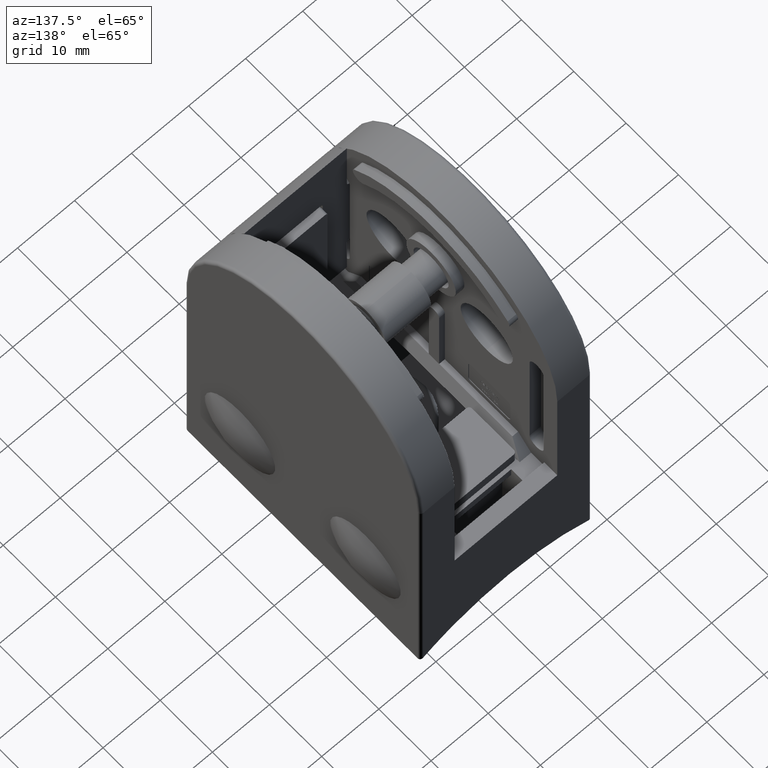
[diagram: clean part render]
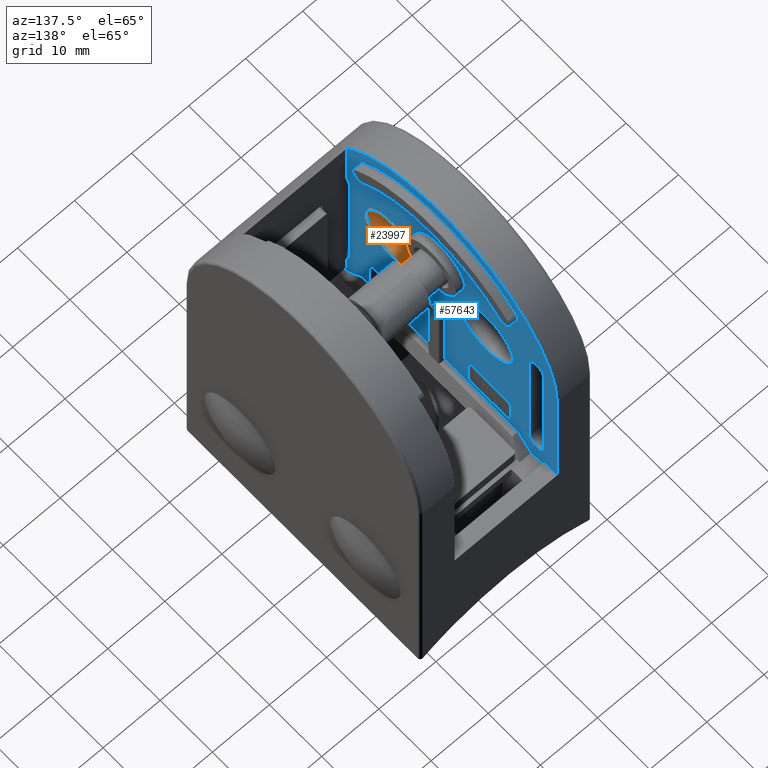
[diagram: same view with the hole feature highlighted: cylindrical wall and planar end face, labeled with their STEP entity ids]
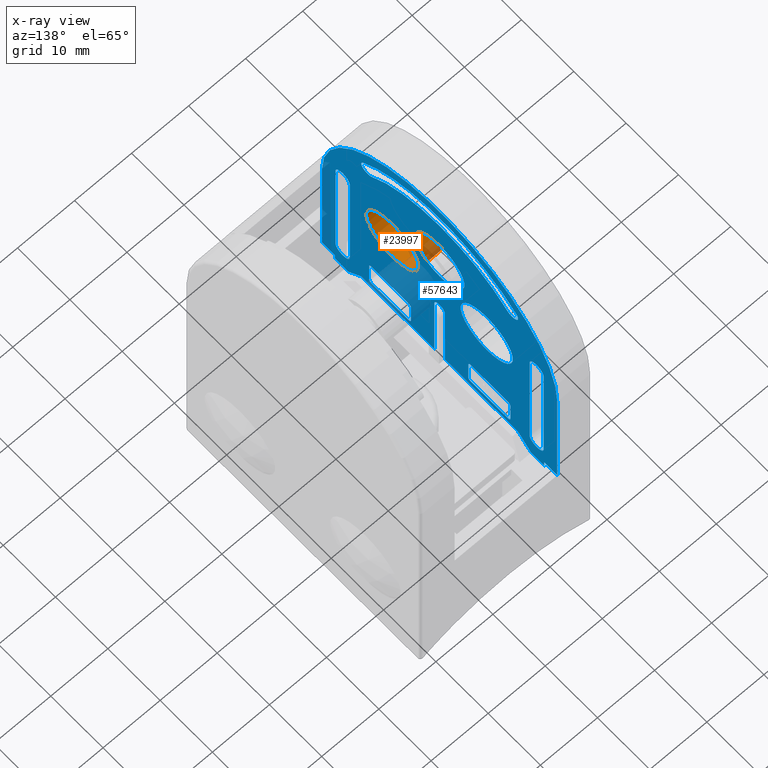
[diagram: x-ray of the same camera — body ghosted, the hole faces saturated]
A machine part, auxiliary view. The highlighted faces form one hole feature of diameter 10 mm: the cylindrical wall (entity #23997, orange) and its adjacent planar end face (entity #57643, blue) — they share a circular edge in the B-rep.
The next image is the same camera in x-ray (body ghosted, the hole faces saturated) — the bore reads through the body.
Wall:
#4879 = DIRECTION ( 'NONE',  ( 1.000000000000000000, 0.000000000000000000, -0.000000000000000000 ) ) ;
#7013 = EDGE_CURVE ( 'NONE', #81976, #81976, #54401, .T. ) ;
#15289 = CARTESIAN_POINT ( 'NONE',  ( 6.000000000000000000, -9.000000000000000000, 45.00000000000000000 ) ) ;
#15502 = FACE_OUTER_BOUND ( 'NONE', #75129, .T. ) ;
#17631 = AXIS2_PLACEMENT_3D ( 'NONE', #22252, #66174, #41173 ) ;
#19157 = DIRECTION ( 'NONE',  ( 1.000000000000000000, 0.000000000000000000, -0.000000000000000000 ) ) ;
#22186 = CARTESIAN_POINT ( 'NONE',  ( 2.000000000000000000, -9.000000000000000000, 45.00000000000000000 ) ) ;
#22252 = CARTESIAN_POINT ( 'NONE',  ( 2.000000000000000000, -9.000000000000000000, 40.00000000000000000 ) ) ;
#23997 = ADVANCED_FACE ( 'NONE', ( #49324, #15502 ), #70157, .F. ) ;
#26104 = CIRCLE ( 'NONE', #62487, 4.999999999999997335 ) ;
#26371 = VERTEX_POINT ( 'NONE', #22186 ) ;
#26609 = AXIS2_PLACEMENT_3D ( 'NONE', #68189, #4879, #74511 ) ;
#27941 = ORIENTED_EDGE ( 'NONE', *, *, #29039, .F. ) ;
#29039 = EDGE_CURVE ( 'NONE', #26371, #26371, #26104, .T. ) ;
#41173 = DIRECTION ( 'NONE',  ( 0.000000000000000000, 0.000000000000000000, -1.000000000000000000 ) ) ;
#42403 = EDGE_LOOP ( 'NONE', ( #27941 ) ) ;
#45322 = CARTESIAN_POINT ( 'NONE',  ( 2.000000000000000000, -9.000000000000000000, 40.00000000000000000 ) ) ;
#49324 = FACE_OUTER_BOUND ( 'NONE', #42403, .T. ) ;
#54401 = CIRCLE ( 'NONE', #26609, 4.999999999999997335 ) ;
#56687 = ORIENTED_EDGE ( 'NONE', *, *, #7013, .T. ) ;
#62487 = AXIS2_PLACEMENT_3D ( 'NONE', #45322, #19157, #69964 ) ;
#66174 = DIRECTION ( 'NONE',  ( 1.000000000000000000, -0.000000000000000000, -0.000000000000000000 ) ) ;
#68189 = CARTESIAN_POINT ( 'NONE',  ( 6.000000000000000000, -9.000000000000000000, 40.00000000000000000 ) ) ;
#69964 = DIRECTION ( 'NONE',  ( 0.000000000000000000, 0.000000000000000000, 1.000000000000000000 ) ) ;
#70157 = CYLINDRICAL_SURFACE ( 'NONE', #17631, 4.999999999999997335 ) ;
#74511 = DIRECTION ( 'NONE',  ( 0.000000000000000000, 0.000000000000000000, 1.000000000000000000 ) ) ;
#75129 = EDGE_LOOP ( 'NONE', ( #56687 ) ) ;
#81976 = VERTEX_POINT ( 'NONE', #15289 ) ;
End face:
#173 = CARTESIAN_POINT ( 'NONE',  ( 6.000000000000000000, -12.94196891191710108, 53.15367301153983703 ) ) ;
#361 = EDGE_CURVE ( 'NONE', #18874, #50488, #15577, .T. ) ;
#816 = ORIENTED_EDGE ( 'NONE', *, *, #51724, .F. ) ;
#861 = AXIS2_PLACEMENT_3D ( 'NONE', #82018, #76202, #7051 ) ;
#928 = CARTESIAN_POINT ( 'NONE',  ( 6.000000000000000000, -17.50000000000002132, 17.00000000000000711 ) ) ;
#1001 = CARTESIAN_POINT ( 'NONE',  ( 6.000000000000000000, 14.65803108808290034, 54.83150810699262934 ) ) ;
#1279 = VECTOR ( 'NONE', #3172, 1000.000000000000000 ) ;
#1334 = CARTESIAN_POINT ( 'NONE',  ( 6.000000000000000000, -22.50000000000001776, 17.99999999999998934 ) ) ;
#1393 = EDGE_LOOP ( 'NONE', ( #61485, #41975, #26505, #57368, #76343, #21941, #74850, #26824 ) ) ;
#1530 = VECTOR ( 'NONE', #24555, 1000.000000000000000 ) ;
#2069 = VERTEX_POINT ( 'NONE', #1001 ) ;
#2100 = FACE_BOUND ( 'NONE', #1393, .T. ) ;
#2169 = CARTESIAN_POINT ( 'NONE',  ( 5.999999999999999112, 20.70156211871645269, 19.50000000000000355 ) ) ;
#2194 = VERTEX_POINT ( 'NONE', #48165 ) ;
#2509 = VERTEX_POINT ( 'NONE', #173 ) ;
#2818 = VERTEX_POINT ( 'NONE', #29339 ) ;
#3021 = CARTESIAN_POINT ( 'NONE',  ( 6.000000000000000000, -17.20000000000001350, 44.04999999999999005 ) ) ;
#3172 = DIRECTION ( 'NONE',  ( -0.000000000000000000, -0.000000000000000000, 1.000000000000000000 ) ) ;
#3480 = EDGE_CURVE ( 'NONE', #2069, #4371, #20220, .T. ) ;
#3550 = DIRECTION ( 'NONE',  ( 1.000000000000000000, 0.000000000000000000, 0.000000000000000000 ) ) ;
#3787 = EDGE_LOOP ( 'NONE', ( #79572, #7014, #10393, #71528, #49148, #58122, #816, #34445, #29416, #10460, #16674, #47319, #47744, #4887, #7766, #5721 ) ) ;
#3964 = CARTESIAN_POINT ( 'NONE',  ( 6.000000000000000000, -17.50000000000002132, 17.00000000000000711 ) ) ;
#4017 = EDGE_CURVE ( 'NONE', #2509, #79982, #15189, .T. ) ;
#4371 = VERTEX_POINT ( 'NONE', #26617 ) ;
#4879 = DIRECTION ( 'NONE',  ( 1.000000000000000000, 0.000000000000000000, -0.000000000000000000 ) ) ;
#4887 = ORIENTED_EDGE ( 'NONE', *, *, #20432, .T. ) ;
#5148 = DIRECTION ( 'NONE',  ( 0.000000000000000000, 0.000000000000000000, -1.000000000000000000 ) ) ;
#5566 = EDGE_CURVE ( 'NONE', #2194, #58771, #46345, .T. ) ;
#5721 = ORIENTED_EDGE ( 'NONE', *, *, #6878, .F. ) ;
#5857 = VERTEX_POINT ( 'NONE', #71597 ) ;
#6282 = CIRCLE ( 'NONE', #71033, 0.5000000000000004441 ) ;
#6352 = ORIENTED_EDGE ( 'NONE', *, *, #50989, .F. ) ;
#6656 = CARTESIAN_POINT ( 'NONE',  ( 6.000000000000000000, -6.000000000000000000, 20.49999999999999645 ) ) ;
#6738 = CARTESIAN_POINT ( 'NONE',  ( 6.000000000000000000, -13.50000000000000000, 24.99999999999999645 ) ) ;
#6760 = DIRECTION ( 'NONE',  ( 1.000000000000000000, 0.000000000000000000, 0.000000000000000000 ) ) ;
#6828 = CARTESIAN_POINT ( 'NONE',  ( 6.000000000000000000, 0.000000000000000000, 48.00000000000000000 ) ) ;
#6878 = EDGE_CURVE ( 'NONE', #66509, #8408, #37447, .T. ) ;
#7013 = EDGE_CURVE ( 'NONE', #81976, #81976, #54401, .T. ) ;
#7014 = ORIENTED_EDGE ( 'NONE', *, *, #60318, .F. ) ;
#7051 = DIRECTION ( 'NONE',  ( 0.000000000000000000, 0.000000000000000000, -1.000000000000000000 ) ) ;
#7349 = VECTOR ( 'NONE', #5148, 1000.000000000000000 ) ;
#7766 = ORIENTED_EDGE ( 'NONE', *, *, #24668, .T. ) ;
#8408 = VERTEX_POINT ( 'NONE', #1334 ) ;
#8845 = CARTESIAN_POINT ( 'NONE',  ( 6.000000000000000000, 6.000000000000001776, 20.99999999999999645 ) ) ;
#9095 = CARTESIAN_POINT ( 'NONE',  ( 6.000000000000000000, -6.000000000000000000, 24.99999999999999645 ) ) ;
#9288 = DIRECTION ( 'NONE',  ( 0.000000000000000000, 0.000000000000000000, -1.000000000000000000 ) ) ;
#9456 = VECTOR ( 'NONE', #14408, 1000.000000000000000 ) ;
#9615 = CIRCLE ( 'NONE', #861, 1.199999999999999734 ) ;
#9678 = EDGE_CURVE ( 'NONE', #5857, #52253, #42031, .T. ) ;
#10072 = CARTESIAN_POINT ( 'NONE',  ( 6.000000000000000000, -5.500000000000000000, 24.99999999999999645 ) ) ;
#10321 = CARTESIAN_POINT ( 'NONE',  ( 6.000000000000000000, -13.50000000000000000, 20.99999999999999645 ) ) ;
#10393 = ORIENTED_EDGE ( 'NONE', *, *, #72412, .T. ) ;
#10460 = ORIENTED_EDGE ( 'NONE', *, *, #18483, .F. ) ;
#10950 = FACE_BOUND ( 'NONE', #14848, .T. ) ;
#11635 = CARTESIAN_POINT ( 'NONE',  ( 6.000000000000000000, 17.50000000000002132, 17.00000000000000711 ) ) ;
#11714 = VERTEX_POINT ( 'NONE', #61515 ) ;
#12028 = VERTEX_POINT ( 'NONE', #40619 ) ;
#12170 = LINE ( 'NONE', #53679, #14169 ) ;
#12315 = DIRECTION ( 'NONE',  ( -1.000000000000000000, -0.000000000000000000, -0.000000000000000000 ) ) ;
#12411 = AXIS2_PLACEMENT_3D ( 'NONE', #37440, #57220, #38533 ) ;
#12626 = DIRECTION ( 'NONE',  ( 0.000000000000000000, 0.000000000000000000, -1.000000000000000000 ) ) ;
#13304 = VERTEX_POINT ( 'NONE', #22345 ) ;
#13350 = ORIENTED_EDGE ( 'NONE', *, *, #361, .T. ) ;
#13436 = ORIENTED_EDGE ( 'NONE', *, *, #46357, .F. ) ;
#14046 = CARTESIAN_POINT ( 'NONE',  ( 6.000000000000000000, 6.000000000000001776, 24.99999999999999645 ) ) ;
#14169 = VECTOR ( 'NONE', #60042, 1000.000000000000000 ) ;
#14408 = DIRECTION ( 'NONE',  ( 0.000000000000000000, 0.000000000000000000, -1.000000000000000000 ) ) ;
#14848 = EDGE_LOOP ( 'NONE', ( #62722, #19204, #49318, #13436 ) ) ;
#15168 = DIRECTION ( 'NONE',  ( 0.000000000000000000, 0.000000000000000000, -1.000000000000000000 ) ) ;
#15189 = CIRCLE ( 'NONE', #51089, 18.10000000000001918 ) ;
#15267 = EDGE_CURVE ( 'NONE', #53154, #40307, #19453, .T. ) ;
#15289 = CARTESIAN_POINT ( 'NONE',  ( 6.000000000000000000, -9.000000000000000000, 45.00000000000000000 ) ) ;
#15423 = EDGE_CURVE ( 'NONE', #29568, #34145, #39284, .T. ) ;
#15550 = DIRECTION ( 'NONE',  ( 0.000000000000000000, 0.000000000000000000, -1.000000000000000000 ) ) ;
#15577 = CIRCLE ( 'NONE', #48299, 0.5000000000000004441 ) ;
#15655 = CARTESIAN_POINT ( 'NONE',  ( 6.000000000000000000, 5.500000000000001776, 20.49999999999999645 ) ) ;
#15742 = CARTESIAN_POINT ( 'NONE',  ( 5.999999999999999112, 15.00000000000001954, 19.50000000000000355 ) ) ;
#16061 = CARTESIAN_POINT ( 'NONE',  ( 6.000000000000000000, -5.500000000000000000, 25.50000000000000000 ) ) ;
#16385 = DIRECTION ( 'NONE',  ( -1.000000000000000000, -0.000000000000000000, -0.000000000000000000 ) ) ;
#16493 = CARTESIAN_POINT ( 'NONE',  ( 6.000000000000000000, -20.00000000000002132, 17.99999999999999289 ) ) ;
#16674 = ORIENTED_EDGE ( 'NONE', *, *, #68521, .F. ) ;
#16686 = CARTESIAN_POINT ( 'NONE',  ( 6.000000000000000000, 17.20000000000001350, 44.04999999999999005 ) ) ;
#17409 = CARTESIAN_POINT ( 'NONE',  ( 6.000000000000000000, -19.90000000000001634, 44.04999999999999005 ) ) ;
#17839 = CARTESIAN_POINT ( 'NONE',  ( 6.000000000000000000, -6.722053469410127491E-15, 40.49999999999997868 ) ) ;
#17864 = EDGE_CURVE ( 'NONE', #2818, #42221, #12170, .T. ) ;
#17886 = DIRECTION ( 'NONE',  ( 0.000000000000000000, 0.000000000000000000, -1.000000000000000000 ) ) ;
#18030 = FACE_OUTER_BOUND ( 'NONE', #3787, .T. ) ;
#18483 = EDGE_CURVE ( 'NONE', #37701, #39384, #19113, .T. ) ;
#18505 = EDGE_CURVE ( 'NONE', #55840, #62353, #78613, .T. ) ;
#18639 = ORIENTED_EDGE ( 'NONE', *, *, #38301, .F. ) ;
#18783 = DIRECTION ( 'NONE',  ( -0.000000000000000000, -1.000000000000000000, -0.000000000000000000 ) ) ;
#18874 = VERTEX_POINT ( 'NONE', #22287 ) ;
#18980 = AXIS2_PLACEMENT_3D ( 'NONE', #22978, #80424, #41884 ) ;
#19033 = CARTESIAN_POINT ( 'NONE',  ( 5.999999999999998224, -17.50000000000008171, 16.99999999999995381 ) ) ;
#19113 = LINE ( 'NONE', #56640, #31015 ) ;
#19199 = DIRECTION ( 'NONE',  ( -0.000000000000000000, -1.000000000000000000, 0.000000000000000000 ) ) ;
#19204 = ORIENTED_EDGE ( 'NONE', *, *, #26834, .T. ) ;
#19453 = LINE ( 'NONE', #24665, #65195 ) ;
#19597 = DIRECTION ( 'NONE',  ( 0.000000000000000000, 0.000000000000000000, -1.000000000000000000 ) ) ;
#19702 = VERTEX_POINT ( 'NONE', #59156 ) ;
#19816 = CARTESIAN_POINT ( 'NONE',  ( 6.000000000000000000, 0.9999999999999890088, 33.50000000000000711 ) ) ;
#19876 = CARTESIAN_POINT ( 'NONE',  ( 6.000000000000000000, 13.50000000000000178, 25.50000000000000355 ) ) ;
#19972 = CARTESIAN_POINT ( 'NONE',  ( 6.000000000000000000, -17.20000000000001350, 44.04999999999999005 ) ) ;
#20071 = CARTESIAN_POINT ( 'NONE',  ( 6.000000000000000000, -6.654304323386755867E-15, 40.49999999999997868 ) ) ;
#20123 = CARTESIAN_POINT ( 'NONE',  ( 6.000000000000000000, 20.00000000000002132, 17.99999999999999645 ) ) ;
#20214 = VECTOR ( 'NONE', #41344, 1000.000000000000000 ) ;
#20220 = CIRCLE ( 'NONE', #78526, 20.50000000000002487 ) ;
#20403 = ORIENTED_EDGE ( 'NONE', *, *, #28219, .T. ) ;
#20427 = CARTESIAN_POINT ( 'NONE',  ( 6.000000000000000000, 5.500000000000001776, 25.50000000000000000 ) ) ;
#20432 = EDGE_CURVE ( 'NONE', #51414, #36836, #60172, .T. ) ;
#20938 = DIRECTION ( 'NONE',  ( -0.000000000000000000, 0.7071067811865485719, 0.7071067811865465735 ) ) ;
#21548 = VECTOR ( 'NONE', #24366, 1000.000000000000000 ) ;
#21556 = DIRECTION ( 'NONE',  ( -1.000000000000000000, -0.000000000000000000, -0.000000000000000000 ) ) ;
#21709 = EDGE_CURVE ( 'NONE', #59936, #39384, #27216, .T. ) ;
#21941 = ORIENTED_EDGE ( 'NONE', *, *, #28038, .T. ) ;
#22287 = CARTESIAN_POINT ( 'NONE',  ( 6.000000000000000000, 5.500000000000001776, 24.99999999999999645 ) ) ;
#22345 = CARTESIAN_POINT ( 'NONE',  ( 6.000000000000000000, 13.00000000000000178, 20.49999999999999645 ) ) ;
#22786 = DIRECTION ( 'NONE',  ( 0.000000000000000000, 1.000000000000000000, 0.000000000000000000 ) ) ;
#22978 = CARTESIAN_POINT ( 'NONE',  ( 6.000000000000000000, -18.55000000000001847, 44.04999999999999005 ) ) ;
#23554 = LINE ( 'NONE', #38930, #64323 ) ;
#23801 = EDGE_LOOP ( 'NONE', ( #18639, #61464, #29559, #32614 ) ) ;
#24004 = EDGE_CURVE ( 'NONE', #2194, #13304, #59397, .T. ) ;
#24366 = DIRECTION ( 'NONE',  ( -0.000000000000000000, 8.566535683836090412E-17, -1.000000000000000000 ) ) ;
#24379 = CIRCLE ( 'NONE', #46940, 4.749999999999997335 ) ;
#24555 = DIRECTION ( 'NONE',  ( 0.000000000000000000, 0.000000000000000000, -1.000000000000000000 ) ) ;
#24621 = CARTESIAN_POINT ( 'NONE',  ( 6.000000000000000000, 13.00000000000000178, 25.50000000000000355 ) ) ;
#24665 = CARTESIAN_POINT ( 'NONE',  ( 6.000000000000000000, -13.50000000000000000, 25.50000000000000000 ) ) ;
#24668 = EDGE_CURVE ( 'NONE', #36836, #8408, #56429, .T. ) ;
#25487 = LINE ( 'NONE', #16686, #74108 ) ;
#25509 = AXIS2_PLACEMENT_3D ( 'NONE', #20071, #6760, #25920 ) ;
#25687 = CARTESIAN_POINT ( 'NONE',  ( 6.000000000000000000, 9.000000000000000000, 40.00000000000000000 ) ) ;
#25742 = EDGE_CURVE ( 'NONE', #34145, #19702, #35394, .T. ) ;
#25920 = DIRECTION ( 'NONE',  ( 0.000000000000000000, 0.000000000000000000, -1.000000000000000000 ) ) ;
#25972 = VERTEX_POINT ( 'NONE', #34517 ) ;
#25978 = CIRCLE ( 'NONE', #56671, 1.350000000000000533 ) ;
#26063 = LINE ( 'NONE', #19876, #49940 ) ;
#26183 = VECTOR ( 'NONE', #19199, 1000.000000000000000 ) ;
#26505 = ORIENTED_EDGE ( 'NONE', *, *, #15267, .F. ) ;
#26606 = EDGE_CURVE ( 'NONE', #79876, #79876, #24379, .T. ) ;
#26609 = AXIS2_PLACEMENT_3D ( 'NONE', #68189, #4879, #74511 ) ;
#26617 = CARTESIAN_POINT ( 'NONE',  ( 6.000000000000000000, -14.65803108808290389, 54.83150810699263644 ) ) ;
#26663 = CARTESIAN_POINT ( 'NONE',  ( 6.000000000000000000, 18.55000000000001492, 21.75000000000000355 ) ) ;
#26801 = VERTEX_POINT ( 'NONE', #28736 ) ;
#26824 = ORIENTED_EDGE ( 'NONE', *, *, #45833, .T. ) ;
#26834 = EDGE_CURVE ( 'NONE', #47243, #60747, #31316, .T. ) ;
#27114 = LINE ( 'NONE', #20427, #37086 ) ;
#27216 = LINE ( 'NONE', #27602, #76803 ) ;
#27372 = DIRECTION ( 'NONE',  ( 0.000000000000000000, 0.000000000000000000, -1.000000000000000000 ) ) ;
#27394 = CARTESIAN_POINT ( 'NONE',  ( 6.000000000000000000, -18.55000000000001492, 21.75000000000000355 ) ) ;
#27602 = CARTESIAN_POINT ( 'NONE',  ( 5.999999999999998224, 17.50000000000008171, 16.99999999999995381 ) ) ;
#27890 = FACE_BOUND ( 'NONE', #55552, .T. ) ;
#28038 = EDGE_CURVE ( 'NONE', #55840, #68317, #63973, .T. ) ;
#28219 = EDGE_CURVE ( 'NONE', #45343, #40196, #79703, .T. ) ;
#28307 = AXIS2_PLACEMENT_3D ( 'NONE', #27394, #71761, #70695 ) ;
#28592 = DIRECTION ( 'NONE',  ( -0.000000000000000000, -0.000000000000000000, 1.000000000000000000 ) ) ;
#28736 = CARTESIAN_POINT ( 'NONE',  ( 6.000000000000000000, -20.00000000000002132, 17.00000000000000711 ) ) ;
#28788 = AXIS2_PLACEMENT_3D ( 'NONE', #8845, #53400, #66376 ) ;
#29026 = LINE ( 'NONE', #34507, #38906 ) ;
#29087 = AXIS2_PLACEMENT_3D ( 'NONE', #74441, #36493, #17886 ) ;
#29339 = CARTESIAN_POINT ( 'NONE',  ( 6.000000000000000000, 22.50000000000001421, 17.99999999999998224 ) ) ;
#29416 = ORIENTED_EDGE ( 'NONE', *, *, #21709, .T. ) ;
#29476 = VECTOR ( 'NONE', #53303, 1000.000000000000000 ) ;
#29559 = ORIENTED_EDGE ( 'NONE', *, *, #15423, .T. ) ;
#29568 = VERTEX_POINT ( 'NONE', #19972 ) ;
#29999 = CIRCLE ( 'NONE', #29087, 1.350000000000004086 ) ;
#30328 = DIRECTION ( 'NONE',  ( -1.000000000000000000, -0.000000000000000000, -0.000000000000000000 ) ) ;
#30820 = DIRECTION ( 'NONE',  ( 1.000000000000000000, 0.000000000000000000, -0.000000000000000000 ) ) ;
#31015 = VECTOR ( 'NONE', #57160, 1000.000000000000000 ) ;
#31316 = LINE ( 'NONE', #42857, #1530 ) ;
#31387 = EDGE_CURVE ( 'NONE', #4371, #2509, #9615, .T. ) ;
#31741 = CARTESIAN_POINT ( 'NONE',  ( 6.000000000000000000, 22.50000000000001776, 8.673617379884035472E-15 ) ) ;
#32059 = VECTOR ( 'NONE', #20938, 1000.000000000000000 ) ;
#32485 = EDGE_CURVE ( 'NONE', #62887, #13304, #53378, .T. ) ;
#32614 = ORIENTED_EDGE ( 'NONE', *, *, #25742, .T. ) ;
#32647 = DIRECTION ( 'NONE',  ( 1.000000000000000000, 0.000000000000000000, 0.000000000000000000 ) ) ;
#32934 = DIRECTION ( 'NONE',  ( 0.000000000000000000, 0.000000000000000000, -1.000000000000000000 ) ) ;
#32994 = DIRECTION ( 'NONE',  ( -0.000000000000000000, -1.000000000000000000, 0.000000000000000000 ) ) ;
#33004 = LINE ( 'NONE', #19033, #32059 ) ;
#33511 = ORIENTED_EDGE ( 'NONE', *, *, #4017, .F. ) ;
#34145 = VERTEX_POINT ( 'NONE', #57275 ) ;
#34182 = CARTESIAN_POINT ( 'NONE',  ( 6.000000000000000000, 12.94196891191709931, 53.15367301153982282 ) ) ;
#34266 = DIRECTION ( 'NONE',  ( 0.000000000000000000, 0.7071067811865485719, -0.7071067811865465735 ) ) ;
#34445 = ORIENTED_EDGE ( 'NONE', *, *, #39094, .F. ) ;
#34471 = ORIENTED_EDGE ( 'NONE', *, *, #72395, .F. ) ;
#34496 = DIRECTION ( 'NONE',  ( -0.000000000000000000, 1.084202172485503818E-16, -1.000000000000000000 ) ) ;
#34507 = CARTESIAN_POINT ( 'NONE',  ( 6.000000000000000000, 20.00000000000002487, -3.061616997868368350E-16 ) ) ;
#34517 = CARTESIAN_POINT ( 'NONE',  ( 6.000000000000000000, -19.90000000000001634, 44.04999999999999005 ) ) ;
#35295 = EDGE_LOOP ( 'NONE', ( #46642, #64888, #72924, #13350, #75982, #20403, #34471, #71856 ) ) ;
#35349 = EDGE_CURVE ( 'NONE', #68502, #47567, #73827, .T. ) ;
#35394 = CIRCLE ( 'NONE', #28307, 1.350000000000000533 ) ;
#36188 = EDGE_CURVE ( 'NONE', #26801, #66509, #37943, .T. ) ;
#36438 = CARTESIAN_POINT ( 'NONE',  ( 6.000000000000000000, 6.000000000000001776, 25.50000000000000000 ) ) ;
#36493 = DIRECTION ( 'NONE',  ( 1.000000000000000000, 0.000000000000000000, 0.000000000000000000 ) ) ;
#36699 = DIRECTION ( 'NONE',  ( 0.000000000000000000, 0.000000000000000000, -1.000000000000000000 ) ) ;
#36751 = CARTESIAN_POINT ( 'NONE',  ( 6.000000000000000000, 19.90000000000001634, 44.04999999999999005 ) ) ;
#36836 = VERTEX_POINT ( 'NONE', #45581 ) ;
#37086 = VECTOR ( 'NONE', #71465, 1000.000000000000000 ) ;
#37440 = CARTESIAN_POINT ( 'NONE',  ( 6.000000000000000000, -6.654304323386755867E-15, 40.49999999999997868 ) ) ;
#37447 = LINE ( 'NONE', #40174, #29476 ) ;
#37701 = VERTEX_POINT ( 'NONE', #70329 ) ;
#37726 = DIRECTION ( 'NONE',  ( 0.000000000000000000, 0.000000000000000000, 1.000000000000000000 ) ) ;
#37943 = LINE ( 'NONE', #16493, #1279 ) ;
#38254 = EDGE_CURVE ( 'NONE', #53154, #62353, #45193, .T. ) ;
#38301 = EDGE_CURVE ( 'NONE', #25972, #19702, #74886, .T. ) ;
#38408 = ORIENTED_EDGE ( 'NONE', *, *, #3480, .F. ) ;
#38508 = CARTESIAN_POINT ( 'NONE',  ( 6.000000000000000000, -0.9999999999999974465, 19.50000000000000000 ) ) ;
#38533 = DIRECTION ( 'NONE',  ( 0.000000000000000000, 0.000000000000000000, -1.000000000000000000 ) ) ;
#38906 = VECTOR ( 'NONE', #71931, 1000.000000000000000 ) ;
#38930 = CARTESIAN_POINT ( 'NONE',  ( 6.000000000000000000, 0.9999999999999904521, 19.50000000000000000 ) ) ;
#39031 = VERTEX_POINT ( 'NONE', #928 ) ;
#39094 = EDGE_CURVE ( 'NONE', #59936, #11714, #81719, .T. ) ;
#39284 = LINE ( 'NONE', #3021, #9456 ) ;
#39384 = VERTEX_POINT ( 'NONE', #11635 ) ;
#39564 = ORIENTED_EDGE ( 'NONE', *, *, #7013, .F. ) ;
#39568 = CARTESIAN_POINT ( 'NONE',  ( 6.000000000000000000, 13.50000000000000178, 25.00000000000000000 ) ) ;
#39599 = DIRECTION ( 'NONE',  ( -1.000000000000000000, -0.000000000000000000, -0.000000000000000000 ) ) ;
#40174 = CARTESIAN_POINT ( 'NONE',  ( 6.000000000000000000, -22.50000000000002132, 17.99999999999999645 ) ) ;
#40196 = VERTEX_POINT ( 'NONE', #39568 ) ;
#40307 = VERTEX_POINT ( 'NONE', #10321 ) ;
#40502 = EDGE_CURVE ( 'NONE', #2818, #51414, #54374, .T. ) ;
#40619 = CARTESIAN_POINT ( 'NONE',  ( 6.000000000000000000, -5.500000000000000000, 20.99999999999999645 ) ) ;
#40773 = CARTESIAN_POINT ( 'NONE',  ( 6.000000000000000000, 5.500000000000001776, 20.99999999999999645 ) ) ;
#40944 = CARTESIAN_POINT ( 'NONE',  ( 6.000000000000000000, 22.50000000000000711, 40.49999999999998579 ) ) ;
#41242 = CIRCLE ( 'NONE', #41559, 4.999999999999997335 ) ;
#41291 = CARTESIAN_POINT ( 'NONE',  ( 6.000000000000000000, 13.00000000000000178, 20.99999999999999645 ) ) ;
#41344 = DIRECTION ( 'NONE',  ( 0.000000000000000000, 1.000000000000000000, 0.000000000000000000 ) ) ;
#41434 = EDGE_CURVE ( 'NONE', #74995, #74995, #41242, .T. ) ;
#41559 = AXIS2_PLACEMENT_3D ( 'NONE', #25687, #32647, #19597 ) ;
#41569 = CARTESIAN_POINT ( 'NONE',  ( 6.000000000000000000, -6.722053469410127491E-15, 40.49999999999997868 ) ) ;
#41719 = ORIENTED_EDGE ( 'NONE', *, *, #26606, .F. ) ;
#41884 = DIRECTION ( 'NONE',  ( 0.000000000000000000, 0.000000000000000000, 1.000000000000000000 ) ) ;
#41975 = ORIENTED_EDGE ( 'NONE', *, *, #77843, .T. ) ;
#42031 = LINE ( 'NONE', #46675, #20214 ) ;
#42221 = VERTEX_POINT ( 'NONE', #20123 ) ;
#42244 = VERTEX_POINT ( 'NONE', #64573 ) ;
#42857 = CARTESIAN_POINT ( 'NONE',  ( 6.000000000000000000, 19.90000000000001634, 44.04999999999999005 ) ) ;
#43189 = VECTOR ( 'NONE', #28592, 1000.000000000000000 ) ;
#43265 = LINE ( 'NONE', #38508, #52211 ) ;
#43481 = CIRCLE ( 'NONE', #52904, 0.5000000000000004441 ) ;
#43805 = CARTESIAN_POINT ( 'NONE',  ( 6.000000000000000000, -13.50000000000000000, 25.50000000000000000 ) ) ;
#44730 = DIRECTION ( 'NONE',  ( 1.000000000000000000, 0.000000000000000000, 0.000000000000000000 ) ) ;
#44867 = EDGE_CURVE ( 'NONE', #79920, #42244, #60841, .T. ) ;
#44922 = CIRCLE ( 'NONE', #45620, 1.199999999999999734 ) ;
#45138 = VECTOR ( 'NONE', #80216, 1000.000000000000000 ) ;
#45193 = CIRCLE ( 'NONE', #66979, 0.5000000000000004441 ) ;
#45343 = VERTEX_POINT ( 'NONE', #24621 ) ;
#45581 = CARTESIAN_POINT ( 'NONE',  ( 6.000000000000000000, -22.50000000000002132, 40.49999999999998579 ) ) ;
#45620 = AXIS2_PLACEMENT_3D ( 'NONE', #63052, #30820, #37726 ) ;
#45814 = CARTESIAN_POINT ( 'NONE',  ( 6.000000000000000000, -13.00000000000000000, 25.50000000000000000 ) ) ;
#45820 = DIRECTION ( 'NONE',  ( 1.000000000000000000, 0.000000000000000000, 0.000000000000000000 ) ) ;
#45833 = EDGE_CURVE ( 'NONE', #12028, #52253, #43481, .T. ) ;
#46001 = DIRECTION ( 'NONE',  ( 1.000000000000000000, 0.000000000000000000, 0.000000000000000000 ) ) ;
#46345 = CIRCLE ( 'NONE', #28788, 0.5000000000000004441 ) ;
#46357 = EDGE_CURVE ( 'NONE', #64940, #47569, #25487, .T. ) ;
#46459 = CARTESIAN_POINT ( 'NONE',  ( 6.000000000000000000, -0.9999999999999974465, 19.50000000000000000 ) ) ;
#46642 = ORIENTED_EDGE ( 'NONE', *, *, #24004, .F. ) ;
#46675 = CARTESIAN_POINT ( 'NONE',  ( 6.000000000000000000, -13.50000000000000000, 20.49999999999999645 ) ) ;
#46688 = CARTESIAN_POINT ( 'NONE',  ( 6.000000000000000000, -6.000000000000000000, 25.50000000000000000 ) ) ;
#46826 = FACE_BOUND ( 'NONE', #77590, .T. ) ;
#46940 = AXIS2_PLACEMENT_3D ( 'NONE', #6828, #46001, #32934 ) ;
#47243 = VERTEX_POINT ( 'NONE', #36751 ) ;
#47319 = ORIENTED_EDGE ( 'NONE', *, *, #17864, .F. ) ;
#47446 = VECTOR ( 'NONE', #57622, 1000.000000000000000 ) ;
#47567 = VERTEX_POINT ( 'NONE', #47591 ) ;
#47569 = VERTEX_POINT ( 'NONE', #60048 ) ;
#47591 = CARTESIAN_POINT ( 'NONE',  ( 6.000000000000000000, -0.9999999999999988898, 33.50000000000000711 ) ) ;
#47744 = ORIENTED_EDGE ( 'NONE', *, *, #40502, .T. ) ;
#47999 = DIRECTION ( 'NONE',  ( 0.000000000000000000, 0.000000000000000000, -1.000000000000000000 ) ) ;
#48165 = CARTESIAN_POINT ( 'NONE',  ( 6.000000000000000000, 6.000000000000001776, 20.49999999999999645 ) ) ;
#48299 = AXIS2_PLACEMENT_3D ( 'NONE', #14046, #39599, #27372 ) ;
#48650 = DIRECTION ( 'NONE',  ( 0.000000000000000000, 0.000000000000000000, -1.000000000000000000 ) ) ;
#49131 = EDGE_CURVE ( 'NONE', #45343, #50488, #81746, .T. ) ;
#49133 = CARTESIAN_POINT ( 'NONE',  ( 6.000000000000000000, 13.00000000000000178, 25.00000000000000000 ) ) ;
#49148 = ORIENTED_EDGE ( 'NONE', *, *, #65637, .F. ) ;
#49157 = LINE ( 'NONE', #3964, #63109 ) ;
#49318 = ORIENTED_EDGE ( 'NONE', *, *, #57336, .F. ) ;
#49940 = VECTOR ( 'NONE', #64580, 1000.000000000000000 ) ;
#50235 = AXIS2_PLACEMENT_3D ( 'NONE', #49133, #61878, #68259 ) ;
#50488 = VERTEX_POINT ( 'NONE', #36438 ) ;
#50989 = EDGE_CURVE ( 'NONE', #79982, #2069, #44922, .T. ) ;
#51089 = AXIS2_PLACEMENT_3D ( 'NONE', #17839, #30328, #36699 ) ;
#51414 = VERTEX_POINT ( 'NONE', #40944 ) ;
#51519 = AXIS2_PLACEMENT_3D ( 'NONE', #41291, #21556, #15168 ) ;
#51724 = EDGE_CURVE ( 'NONE', #11714, #68502, #23554, .T. ) ;
#52211 = VECTOR ( 'NONE', #34496, 1000.000000000000000 ) ;
#52253 = VERTEX_POINT ( 'NONE', #6656 ) ;
#52904 = AXIS2_PLACEMENT_3D ( 'NONE', #72963, #16385, #67190 ) ;
#53154 = VERTEX_POINT ( 'NONE', #6738 ) ;
#53303 = DIRECTION ( 'NONE',  ( -0.000000000000000000, -1.000000000000000000, 1.387778780781446464E-15 ) ) ;
#53378 = CIRCLE ( 'NONE', #51519, 0.5000000000000004441 ) ;
#53400 = DIRECTION ( 'NONE',  ( -1.000000000000000000, -0.000000000000000000, -0.000000000000000000 ) ) ;
#53631 = DIRECTION ( 'NONE',  ( -1.000000000000000000, -0.000000000000000000, -0.000000000000000000 ) ) ;
#53679 = CARTESIAN_POINT ( 'NONE',  ( 6.000000000000000000, 20.00000000000002132, 17.99999999999999645 ) ) ;
#54374 = LINE ( 'NONE', #31741, #47446 ) ;
#54401 = CIRCLE ( 'NONE', #26609, 4.999999999999997335 ) ;
#54798 = CIRCLE ( 'NONE', #18980, 1.350000000000004086 ) ;
#55065 = CARTESIAN_POINT ( 'NONE',  ( 6.000000000000000000, 5.500000000000001776, 25.50000000000000000 ) ) ;
#55271 = EDGE_LOOP ( 'NONE', ( #38408, #6352, #33511, #55776 ) ) ;
#55552 = EDGE_LOOP ( 'NONE', ( #41719 ) ) ;
#55776 = ORIENTED_EDGE ( 'NONE', *, *, #31387, .F. ) ;
#55840 = VERTEX_POINT ( 'NONE', #46688 ) ;
#56429 = LINE ( 'NONE', #61868, #21548 ) ;
#56640 = CARTESIAN_POINT ( 'NONE',  ( 6.000000000000000000, 17.50000000000002132, 17.00000000000000711 ) ) ;
#56671 = AXIS2_PLACEMENT_3D ( 'NONE', #26663, #45820, #63601 ) ;
#56844 = DIRECTION ( 'NONE',  ( 0.000000000000000000, 0.000000000000000000, -1.000000000000000000 ) ) ;
#57160 = DIRECTION ( 'NONE',  ( -0.000000000000000000, -1.000000000000000000, -0.000000000000000000 ) ) ;
#57220 = DIRECTION ( 'NONE',  ( 1.000000000000000000, 0.000000000000000000, 0.000000000000000000 ) ) ;
#57275 = CARTESIAN_POINT ( 'NONE',  ( 6.000000000000000000, -17.20000000000001350, 21.75000000000000355 ) ) ;
#57336 = EDGE_CURVE ( 'NONE', #47569, #60747, #25978, .T. ) ;
#57368 = ORIENTED_EDGE ( 'NONE', *, *, #38254, .T. ) ;
#57622 = DIRECTION ( 'NONE',  ( 0.000000000000000000, -2.569960705150826877E-16, 1.000000000000000000 ) ) ;
#57643 = ADVANCED_FACE ( 'NONE', ( #63686, #2100, #27890, #67615, #46826, #10950, #76513, #18030, #59380 ), #69096, .T. ) ;
#57662 = CARTESIAN_POINT ( 'NONE',  ( 6.000000000000000000, -13.00000000000000000, 20.99999999999999645 ) ) ;
#58122 = ORIENTED_EDGE ( 'NONE', *, *, #35349, .F. ) ;
#58771 = VERTEX_POINT ( 'NONE', #40773 ) ;
#59156 = CARTESIAN_POINT ( 'NONE',  ( 6.000000000000000000, -19.90000000000001634, 21.75000000000000355 ) ) ;
#59380 = FACE_BOUND ( 'NONE', #55271, .T. ) ;
#59397 = LINE ( 'NONE', #15655, #63275 ) ;
#59506 = AXIS2_PLACEMENT_3D ( 'NONE', #63860, #44730, #71046 ) ;
#59869 = VECTOR ( 'NONE', #18783, 1000.000000000000000 ) ;
#59936 = VERTEX_POINT ( 'NONE', #15742 ) ;
#60042 = DIRECTION ( 'NONE',  ( -0.000000000000000000, -1.000000000000000000, -0.000000000000000000 ) ) ;
#60048 = CARTESIAN_POINT ( 'NONE',  ( 6.000000000000000000, 17.20000000000001350, 21.75000000000000355 ) ) ;
#60172 = CIRCLE ( 'NONE', #25509, 22.50000000000001421 ) ;
#60318 = EDGE_CURVE ( 'NONE', #39031, #26801, #49157, .T. ) ;
#60747 = VERTEX_POINT ( 'NONE', #74889 ) ;
#60841 = LINE ( 'NONE', #2169, #67720 ) ;
#61464 = ORIENTED_EDGE ( 'NONE', *, *, #80170, .T. ) ;
#61485 = ORIENTED_EDGE ( 'NONE', *, *, #9678, .F. ) ;
#61515 = CARTESIAN_POINT ( 'NONE',  ( 6.000000000000000000, 0.9999999999999904521, 19.50000000000000000 ) ) ;
#61868 = CARTESIAN_POINT ( 'NONE',  ( 6.000000000000000000, -22.50000000000001776, 0.000000000000000000 ) ) ;
#61878 = DIRECTION ( 'NONE',  ( -1.000000000000000000, -0.000000000000000000, -0.000000000000000000 ) ) ;
#62353 = VERTEX_POINT ( 'NONE', #45814 ) ;
#62722 = ORIENTED_EDGE ( 'NONE', *, *, #63117, .F. ) ;
#62887 = VERTEX_POINT ( 'NONE', #64582 ) ;
#63052 = CARTESIAN_POINT ( 'NONE',  ( 6.000000000000000000, 13.80000000000000071, 53.99259055926624029 ) ) ;
#63109 = VECTOR ( 'NONE', #66975, 1000.000000000000000 ) ;
#63117 = EDGE_CURVE ( 'NONE', #47243, #64940, #29999, .T. ) ;
#63275 = VECTOR ( 'NONE', #22786, 1000.000000000000000 ) ;
#63483 = ORIENTED_EDGE ( 'NONE', *, *, #41434, .F. ) ;
#63601 = DIRECTION ( 'NONE',  ( 0.000000000000000000, 0.000000000000000000, -1.000000000000000000 ) ) ;
#63686 = FACE_BOUND ( 'NONE', #35295, .T. ) ;
#63860 = CARTESIAN_POINT ( 'NONE',  ( 6.000000000000000000, -5.000255450887808274E-15, 33.50000000000000711 ) ) ;
#63973 = CIRCLE ( 'NONE', #75655, 0.5000000000000004441 ) ;
#64323 = VECTOR ( 'NONE', #75844, 1000.000000000000000 ) ;
#64573 = CARTESIAN_POINT ( 'NONE',  ( 5.999999999999999112, -15.00000000000001954, 19.50000000000000355 ) ) ;
#64580 = DIRECTION ( 'NONE',  ( -0.000000000000000000, -0.000000000000000000, 1.000000000000000000 ) ) ;
#64582 = CARTESIAN_POINT ( 'NONE',  ( 6.000000000000000000, 13.50000000000000178, 20.99999999999999645 ) ) ;
#64888 = ORIENTED_EDGE ( 'NONE', *, *, #5566, .T. ) ;
#64940 = VERTEX_POINT ( 'NONE', #74948 ) ;
#65195 = VECTOR ( 'NONE', #12626, 1000.000000000000000 ) ;
#65637 = EDGE_CURVE ( 'NONE', #47567, #79920, #43265, .T. ) ;
#65962 = DIRECTION ( 'NONE',  ( -1.000000000000000000, -0.000000000000000000, -0.000000000000000000 ) ) ;
#66376 = DIRECTION ( 'NONE',  ( 0.000000000000000000, 0.000000000000000000, -1.000000000000000000 ) ) ;
#66509 = VERTEX_POINT ( 'NONE', #67436 ) ;
#66521 = CARTESIAN_POINT ( 'NONE',  ( 6.000000000000000000, -13.00000000000000000, 24.99999999999999645 ) ) ;
#66640 = CARTESIAN_POINT ( 'NONE',  ( 6.000000000000000000, 9.000000000000000000, 35.00000000000000000 ) ) ;
#66975 = DIRECTION ( 'NONE',  ( 0.000000000000000000, -1.000000000000000000, 0.000000000000000000 ) ) ;
#66979 = AXIS2_PLACEMENT_3D ( 'NONE', #66521, #65962, #9288 ) ;
#66989 = EDGE_CURVE ( 'NONE', #18874, #58771, #27114, .T. ) ;
#67190 = DIRECTION ( 'NONE',  ( 0.000000000000000000, 0.000000000000000000, -1.000000000000000000 ) ) ;
#67436 = CARTESIAN_POINT ( 'NONE',  ( 6.000000000000000000, -20.00000000000002132, 17.99999999999999289 ) ) ;
#67615 = FACE_BOUND ( 'NONE', #70498, .T. ) ;
#67720 = VECTOR ( 'NONE', #32994, 1000.000000000000000 ) ;
#68189 = CARTESIAN_POINT ( 'NONE',  ( 6.000000000000000000, -9.000000000000000000, 40.00000000000000000 ) ) ;
#68259 = DIRECTION ( 'NONE',  ( 0.000000000000000000, 0.000000000000000000, -1.000000000000000000 ) ) ;
#68317 = VERTEX_POINT ( 'NONE', #10072 ) ;
#68502 = VERTEX_POINT ( 'NONE', #19816 ) ;
#68521 = EDGE_CURVE ( 'NONE', #42221, #37701, #29026, .T. ) ;
#68978 = LINE ( 'NONE', #16061, #43189 ) ;
#69096 = PLANE ( 'NONE',  #12411 ) ;
#70329 = CARTESIAN_POINT ( 'NONE',  ( 6.000000000000000000, 20.00000000000002132, 17.00000000000000711 ) ) ;
#70498 = EDGE_LOOP ( 'NONE', ( #39564 ) ) ;
#70695 = DIRECTION ( 'NONE',  ( 0.000000000000000000, 0.000000000000000000, 1.000000000000000000 ) ) ;
#70739 = EDGE_CURVE ( 'NONE', #12028, #68317, #68978, .T. ) ;
#71033 = AXIS2_PLACEMENT_3D ( 'NONE', #57662, #12315, #56844 ) ;
#71046 = DIRECTION ( 'NONE',  ( 0.000000000000000000, 0.000000000000000000, -1.000000000000000000 ) ) ;
#71465 = DIRECTION ( 'NONE',  ( 0.000000000000000000, 0.000000000000000000, -1.000000000000000000 ) ) ;
#71528 = ORIENTED_EDGE ( 'NONE', *, *, #44867, .F. ) ;
#71597 = CARTESIAN_POINT ( 'NONE',  ( 6.000000000000000000, -13.00000000000000000, 20.49999999999999645 ) ) ;
#71761 = DIRECTION ( 'NONE',  ( -1.000000000000000000, -0.000000000000000000, 0.000000000000000000 ) ) ;
#71856 = ORIENTED_EDGE ( 'NONE', *, *, #32485, .T. ) ;
#71931 = DIRECTION ( 'NONE',  ( -0.000000000000000000, 1.927470528863119542E-16, -1.000000000000000000 ) ) ;
#72395 = EDGE_CURVE ( 'NONE', #62887, #40196, #26063, .T. ) ;
#72412 = EDGE_CURVE ( 'NONE', #39031, #42244, #33004, .T. ) ;
#72924 = ORIENTED_EDGE ( 'NONE', *, *, #66989, .F. ) ;
#72963 = CARTESIAN_POINT ( 'NONE',  ( 6.000000000000000000, -6.000000000000000000, 20.99999999999999645 ) ) ;
#73772 = CARTESIAN_POINT ( 'NONE',  ( 6.000000000000000000, 0.000000000000000000, 43.25000000000000711 ) ) ;
#73827 = CIRCLE ( 'NONE', #59506, 0.9999999999999940048 ) ;
#74108 = VECTOR ( 'NONE', #48650, 1000.000000000000000 ) ;
#74441 = CARTESIAN_POINT ( 'NONE',  ( 6.000000000000000000, 18.55000000000001847, 44.04999999999999005 ) ) ;
#74511 = DIRECTION ( 'NONE',  ( 0.000000000000000000, 0.000000000000000000, 1.000000000000000000 ) ) ;
#74850 = ORIENTED_EDGE ( 'NONE', *, *, #70739, .F. ) ;
#74886 = LINE ( 'NONE', #17409, #7349 ) ;
#74889 = CARTESIAN_POINT ( 'NONE',  ( 6.000000000000000000, 19.90000000000001634, 21.75000000000000355 ) ) ;
#74948 = CARTESIAN_POINT ( 'NONE',  ( 6.000000000000000000, 17.20000000000001350, 44.04999999999999005 ) ) ;
#74995 = VERTEX_POINT ( 'NONE', #66640 ) ;
#75527 = CARTESIAN_POINT ( 'NONE',  ( 5.999999999999999112, 20.70156211871645269, 19.50000000000000355 ) ) ;
#75655 = AXIS2_PLACEMENT_3D ( 'NONE', #9095, #53631, #15550 ) ;
#75844 = DIRECTION ( 'NONE',  ( 0.000000000000000000, -1.084202172485503818E-16, 1.000000000000000000 ) ) ;
#75982 = ORIENTED_EDGE ( 'NONE', *, *, #49131, .F. ) ;
#76202 = DIRECTION ( 'NONE',  ( 1.000000000000000000, 0.000000000000000000, 0.000000000000000000 ) ) ;
#76343 = ORIENTED_EDGE ( 'NONE', *, *, #18505, .F. ) ;
#76513 = FACE_BOUND ( 'NONE', #23801, .T. ) ;
#76803 = VECTOR ( 'NONE', #34266, 1000.000000000000000 ) ;
#77590 = EDGE_LOOP ( 'NONE', ( #63483 ) ) ;
#77843 = EDGE_CURVE ( 'NONE', #5857, #40307, #6282, .T. ) ;
#78526 = AXIS2_PLACEMENT_3D ( 'NONE', #41569, #3550, #47999 ) ;
#78613 = LINE ( 'NONE', #43805, #59869 ) ;
#79572 = ORIENTED_EDGE ( 'NONE', *, *, #36188, .F. ) ;
#79703 = CIRCLE ( 'NONE', #50235, 0.5000000000000004441 ) ;
#79876 = VERTEX_POINT ( 'NONE', #73772 ) ;
#79920 = VERTEX_POINT ( 'NONE', #46459 ) ;
#79982 = VERTEX_POINT ( 'NONE', #34182 ) ;
#80170 = EDGE_CURVE ( 'NONE', #25972, #29568, #54798, .T. ) ;
#80216 = DIRECTION ( 'NONE',  ( -0.000000000000000000, -1.000000000000000000, -4.336808689942017736E-16 ) ) ;
#80424 = DIRECTION ( 'NONE',  ( -1.000000000000000000, -0.000000000000000000, 0.000000000000000000 ) ) ;
#81719 = LINE ( 'NONE', #75527, #26183 ) ;
#81746 = LINE ( 'NONE', #55065, #45138 ) ;
#81976 = VERTEX_POINT ( 'NONE', #15289 ) ;
#82018 = CARTESIAN_POINT ( 'NONE',  ( 6.000000000000000000, -13.80000000000000249, 53.99259055926624029 ) ) ;